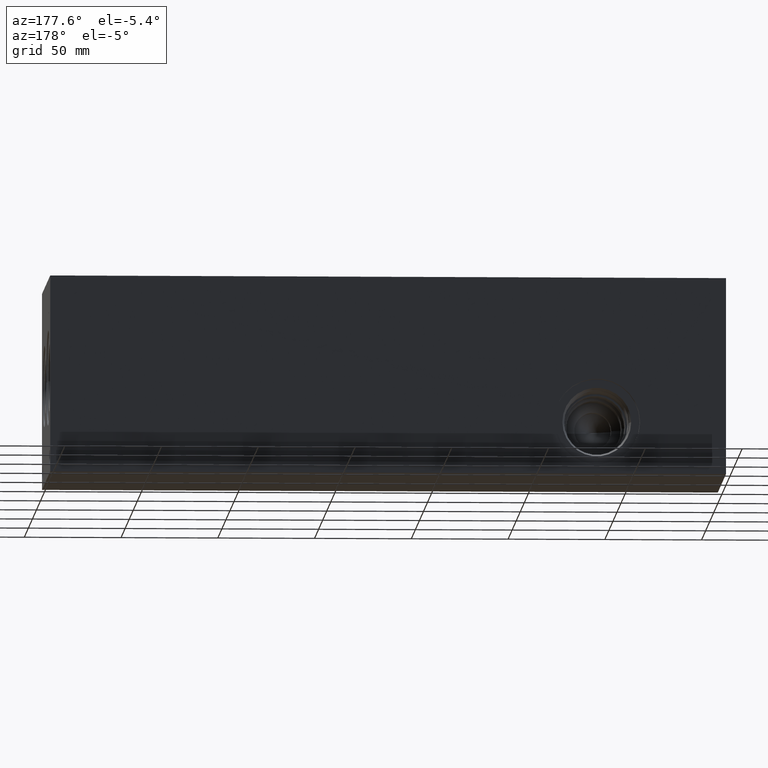
[diagram: clean part render]
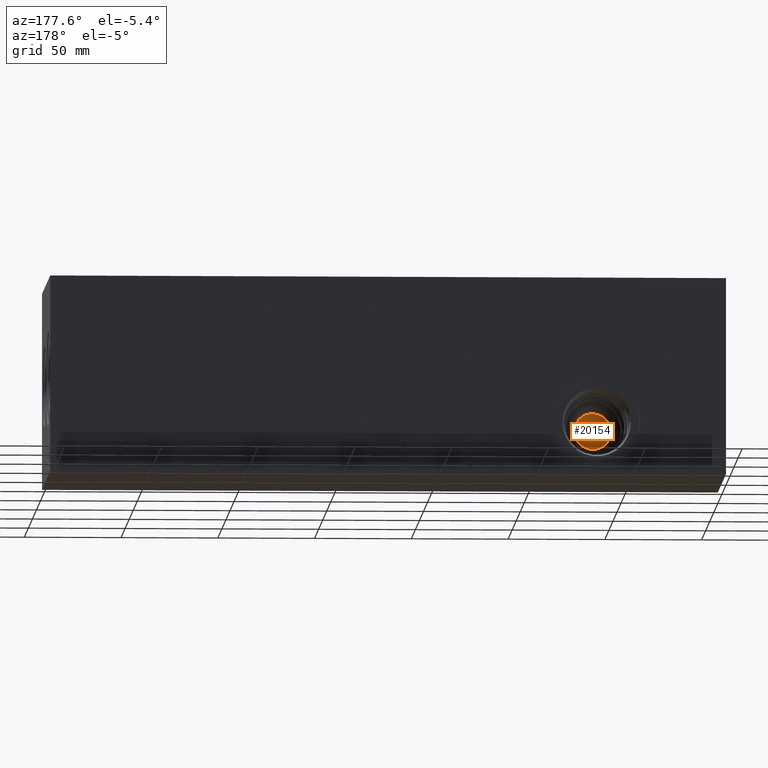
[diagram: same view with one face highlighted and labeled with its STEP entity id]
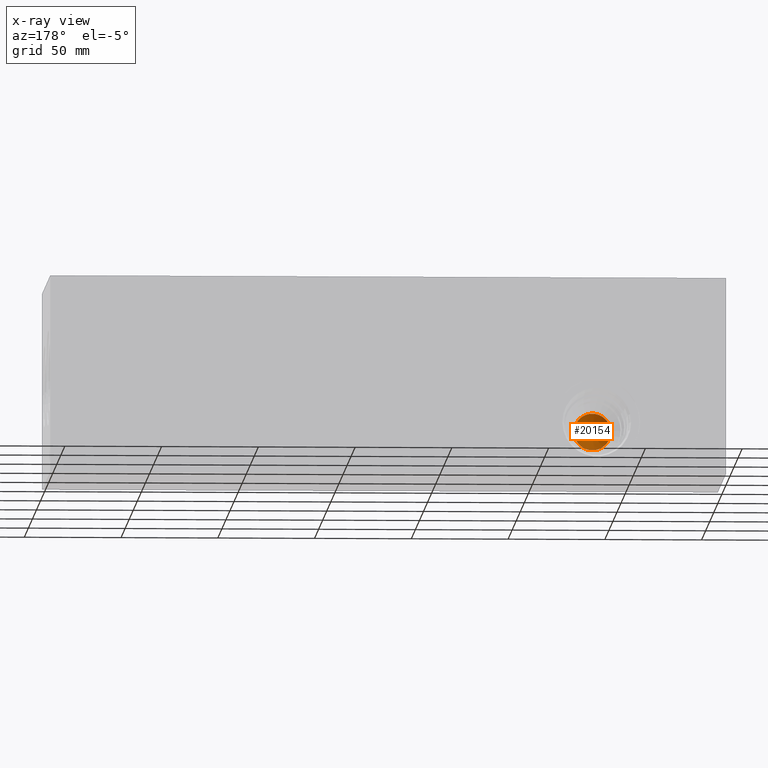
[diagram: x-ray of the same camera — body ghosted, the highlighted face saturated]
A machine part, auxiliary view. The second image highlights one B-rep face of the part: STEP entity #20154.
The next image is the same camera in x-ray: the body ghosted, the highlighted face saturated — about 0% of this face is hidden behind the body in this view.
In plain terms, the highlighted conical surface has half-angle 60 deg.
Its self-contained STEP definition (entity closure, byte-faithful):
#18=CONICAL_SURFACE('',#21068,9.52500000000001,1.04719755230142);
#646=CIRCLE('',#21066,9.52500000000001);
#647=CIRCLE('',#21067,9.52500000000001);
#2656=FACE_OUTER_BOUND('',#3822,.T.);
#3822=EDGE_LOOP('',(#16352,#16353,#16354,#16355));
#5696=LINE('',#33892,#7387);
#7387=VECTOR('',#24487,9.52500000000001);
#9004=VERTEX_POINT('',#33885);
#9005=VERTEX_POINT('',#33887);
#9006=VERTEX_POINT('',#33891);
#11630=EDGE_CURVE('',#9004,#9005,#646,.T.);
#11631=EDGE_CURVE('',#9005,#9004,#647,.T.);
#11632=EDGE_CURVE('',#9004,#9006,#5696,.T.);
#16352=ORIENTED_EDGE('',*,*,#11631,.F.);
#16353=ORIENTED_EDGE('',*,*,#11630,.F.);
#16354=ORIENTED_EDGE('',*,*,#11632,.T.);
#16355=ORIENTED_EDGE('',*,*,#11632,.F.);
#20154=ADVANCED_FACE('',(#2656),#18,.F.);
#21066=AXIS2_PLACEMENT_3D('',#33888,#24481,#24482);
#21067=AXIS2_PLACEMENT_3D('',#33889,#24483,#24484);
#21068=AXIS2_PLACEMENT_3D('',#33890,#24485,#24486);
#24481=DIRECTION('center_axis',(0.,-1.,0.));
#24482=DIRECTION('ref_axis',(1.,0.,0.));
#24483=DIRECTION('center_axis',(0.,-1.,0.));
#24484=DIRECTION('ref_axis',(1.,0.,0.));
#24485=DIRECTION('center_axis',(0.,1.,0.));
#24486=DIRECTION('ref_axis',(1.,0.,0.));
#24487=DIRECTION('',(0.866025404336848,-0.4999999990432,1.06057523940141E-16));
#33885=CARTESIAN_POINT('',(57.15,43.3573825,26.9748));
#33887=CARTESIAN_POINT('',(76.2,43.3573825,26.9748));
#33888=CARTESIAN_POINT('Origin',(66.675,43.3573825,26.9748));
#33889=CARTESIAN_POINT('Origin',(66.675,43.3573825,26.9748));
#33890=CARTESIAN_POINT('Origin',(66.675,43.3573825,26.9748));
#33891=CARTESIAN_POINT('',(66.675,37.8581212,26.9748));
#33892=CARTESIAN_POINT('',(57.15,43.3573825,26.9748));